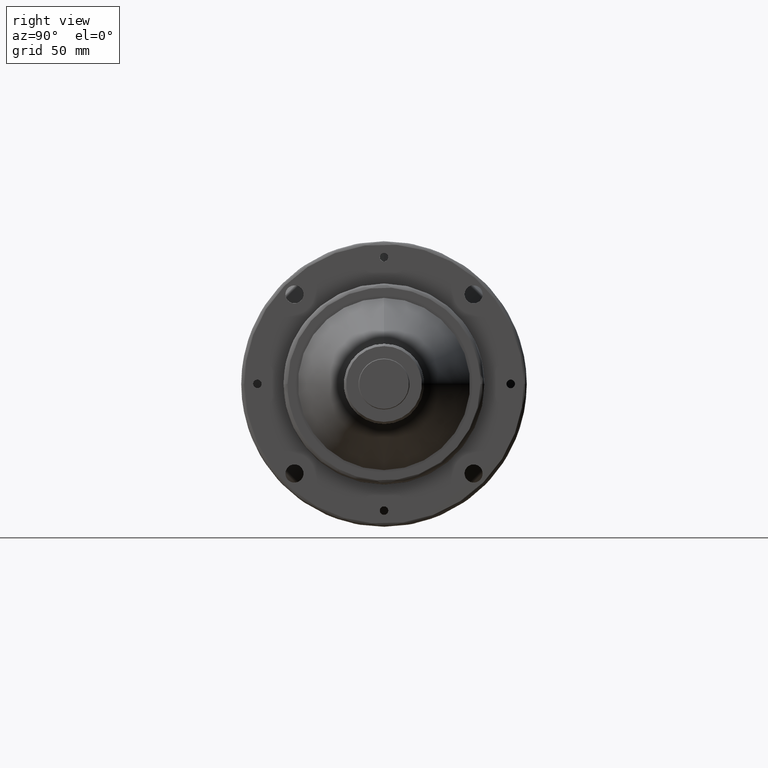
[diagram: clean part render]
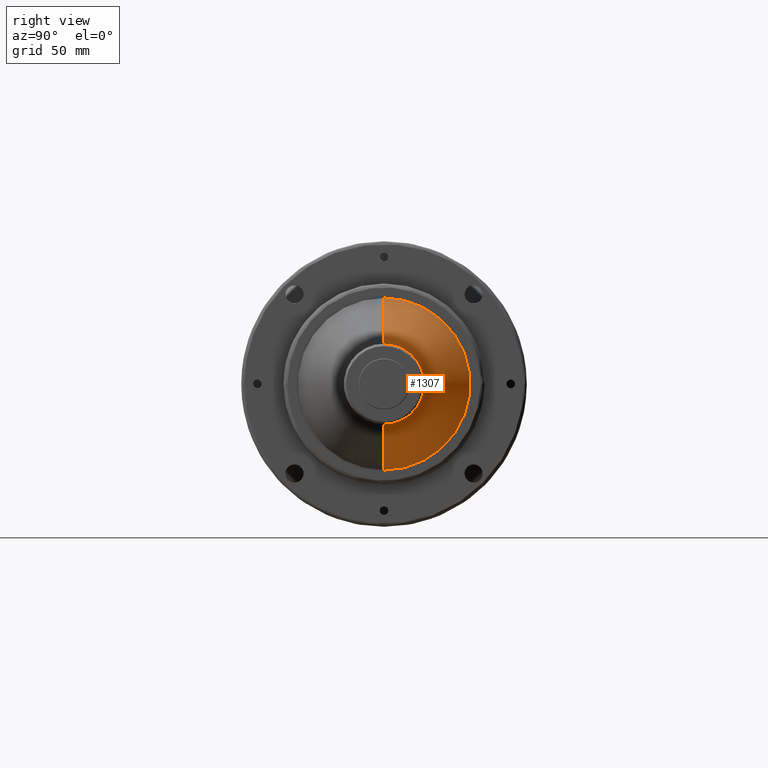
[diagram: same view with one face highlighted and labeled with its STEP entity id]
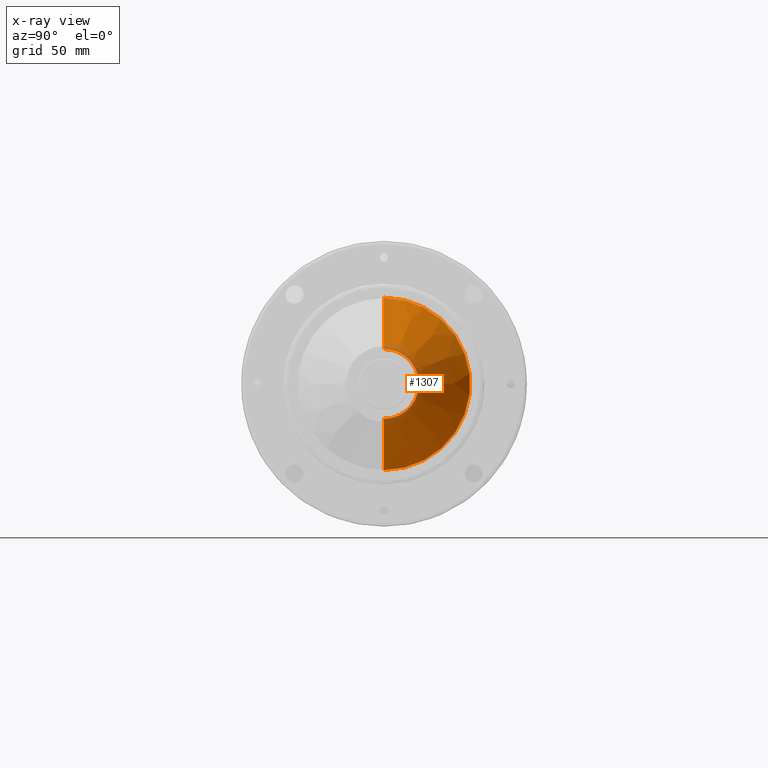
[diagram: x-ray of the same camera — body ghosted, the highlighted face saturated]
A machine part, right view. The second image highlights one B-rep face of the part: STEP entity #1307.
The next image is the same camera in x-ray: the body ghosted, the highlighted face saturated — about 7% of this face is hidden behind the body in this view.
In plain terms, the highlighted conical surface has half-angle 27 deg.
Its self-contained STEP definition (entity closure, byte-faithful):
#235 = DIRECTION ( 'NONE',  ( -0.8910065241878759600, 5.559780123505258500E-017, -0.4539904997405124800 ) ) ;
#322 = DIRECTION ( 'NONE',  ( 0.0000000000000000000, 0.0000000000000000000, 1.000000000000000000 ) ) ;
#360 = VERTEX_POINT ( 'NONE', #4284 ) ;
#481 = CARTESIAN_POINT ( 'NONE',  ( 56.88826477799999300, 2.121943111881439700E-015, -17.32698042700000600 ) ) ;
#794 = ORIENTED_EDGE ( 'NONE', *, *, #3682, .F. ) ;
#832 = ORIENTED_EDGE ( 'NONE', *, *, #4331, .T. ) ;
#1115 = CIRCLE ( 'NONE', #2499, 17.32698042700000600 ) ;
#1120 = FACE_OUTER_BOUND ( 'NONE', #3252, .T. ) ;
#1162 = CIRCLE ( 'NONE', #3810, 17.32698042700000600 ) ;
#1172 = CIRCLE ( 'NONE', #1708, 42.82274977999999500 ) ;
#1307 = ADVANCED_FACE ( 'NONE', ( #1120 ), #1997, .T. ) ;
#1404 = CARTESIAN_POINT ( 'NONE',  ( 56.88826477799999300, 0.0000000000000000000, 17.32698042700000600 ) ) ;
#1547 = DIRECTION ( 'NONE',  ( -1.601870316213805200E-015, -1.000000000000000000, 1.776356839400250500E-015 ) ) ;
#1610 = ORIENTED_EDGE ( 'NONE', *, *, #2740, .F. ) ;
#1705 = VERTEX_POINT ( 'NONE', #2034 ) ;
#1708 = AXIS2_PLACEMENT_3D ( 'NONE', #2469, #2802, #4099 ) ;
#1727 = ORIENTED_EDGE ( 'NONE', *, *, #1889, .F. ) ;
#1752 = CARTESIAN_POINT ( 'NONE',  ( 56.88826477809393400, 17.32698042718371300, -5.330734637093605600E-009 ) ) ;
#1781 = ORIENTED_EDGE ( 'NONE', *, *, #2793, .F. ) ;
#1796 = LINE ( 'NONE', #1404, #2221 ) ;
#1811 = CARTESIAN_POINT ( 'NONE',  ( 56.88826477800002100, 2.121943111881438100E-015, -17.32698042699999200 ) ) ;
#1889 = EDGE_CURVE ( 'NONE', #360, #3230, #1172, .T. ) ;
#1997 = CONICAL_SURFACE ( 'NONE', #3022, 17.32698042700000600, 0.4712388980395527100 ) ;
#2034 = CARTESIAN_POINT ( 'NONE',  ( 56.88826477800002100, 0.0000000000000000000, 17.32698042699999200 ) ) ;
#2132 = DIRECTION ( 'NONE',  ( 1.000000000000000000, -0.0000000000000000000, -0.0000000000000000000 ) ) ;
#2221 = VECTOR ( 'NONE', #3741, 999.9999999999998900 ) ;
#2469 = CARTESIAN_POINT ( 'NONE',  ( 6.850000000000022700, 0.0000000000000000000, 0.0000000000000000000 ) ) ;
#2499 = AXIS2_PLACEMENT_3D ( 'NONE', #2819, #2132, #3827 ) ;
#2539 = CARTESIAN_POINT ( 'NONE',  ( 56.88826477800002100, 0.0000000000000000000, 0.0000000000000000000 ) ) ;
#2662 = VERTEX_POINT ( 'NONE', #1752 ) ;
#2740 = EDGE_CURVE ( 'NONE', #1705, #360, #1796, .T. ) ;
#2793 = EDGE_CURVE ( 'NONE', #3134, #2662, #1115, .T. ) ;
#2802 = DIRECTION ( 'NONE',  ( -1.000000000000000000, 0.0000000000000000000, 0.0000000000000000000 ) ) ;
#2819 = CARTESIAN_POINT ( 'NONE',  ( 56.88826477800002100, 0.0000000000000000000, 0.0000000000000000000 ) ) ;
#2971 = CARTESIAN_POINT ( 'NONE',  ( 56.88826477799999300, 0.0000000000000000000, 0.0000000000000000000 ) ) ;
#3001 = VECTOR ( 'NONE', #235, 999.9999999999998900 ) ;
#3022 = AXIS2_PLACEMENT_3D ( 'NONE', #2971, #4291, #322 ) ;
#3134 = VERTEX_POINT ( 'NONE', #1811 ) ;
#3230 = VERTEX_POINT ( 'NONE', #4295 ) ;
#3252 = EDGE_LOOP ( 'NONE', ( #1781, #832, #1727, #1610, #794 ) ) ;
#3428 = LINE ( 'NONE', #481, #3001 ) ;
#3530 = DIRECTION ( 'NONE',  ( 1.000000000000000000, -0.0000000000000000000, -0.0000000000000000000 ) ) ;
#3682 = EDGE_CURVE ( 'NONE', #2662, #1705, #1162, .T. ) ;
#3741 = DIRECTION ( 'NONE',  ( -0.8910065241878759600, 0.0000000000000000000, 0.4539904997405124800 ) ) ;
#3810 = AXIS2_PLACEMENT_3D ( 'NONE', #2539, #3530, #1547 ) ;
#3827 = DIRECTION ( 'NONE',  ( -1.601870316213805200E-015, -1.000000000000000000, 0.0000000000000000000 ) ) ;
#4099 = DIRECTION ( 'NONE',  ( 0.0000000000000000000, 0.0000000000000000000, 1.000000000000000000 ) ) ;
#4284 = CARTESIAN_POINT ( 'NONE',  ( 6.850000000000022700, 0.0000000000000000000, 42.82274977999999500 ) ) ;
#4291 = DIRECTION ( 'NONE',  ( -1.000000000000000000, 0.0000000000000000000, 0.0000000000000000000 ) ) ;
#4295 = CARTESIAN_POINT ( 'NONE',  ( 6.850000000000022700, 5.244274344876501800E-015, -42.82274977999999500 ) ) ;
#4331 = EDGE_CURVE ( 'NONE', #3134, #3230, #3428, .T. ) ;